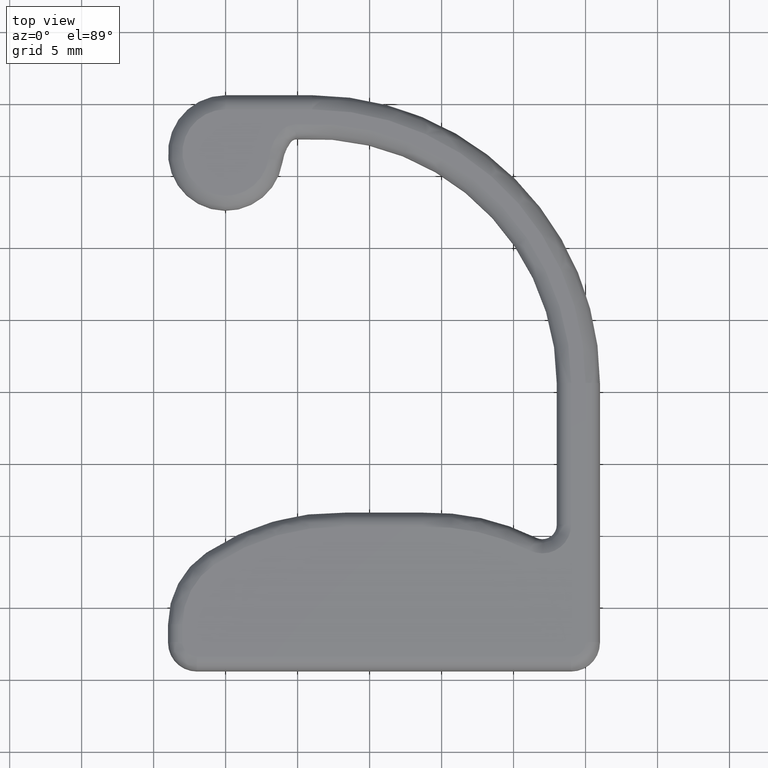
[diagram: clean part render]
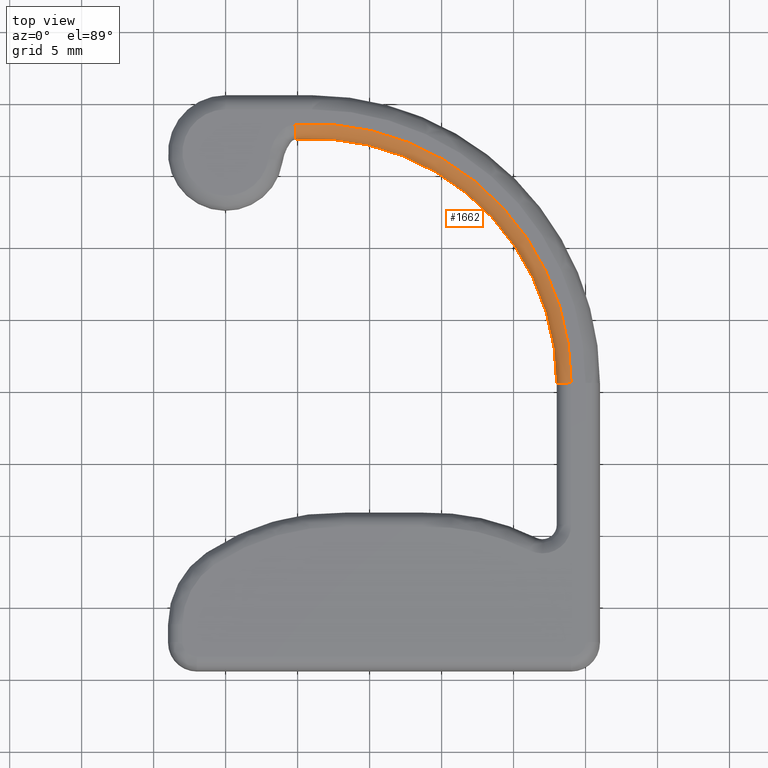
[diagram: same view with one face highlighted and labeled with its STEP entity id]
A machine part, top view. The second image highlights one B-rep face of the part: STEP entity #1662.
In plain terms, the highlighted face is a freeform B-spline surface patch.
Its self-contained STEP definition (entity closure, byte-faithful):
#515=CARTESIAN_POINT('',(4.820531992696061,33.459261606171367,3.0));
#516=VERTEX_POINT('',#515);
#524=CARTESIAN_POINT('',(23.999999999999659,15.497946085872059,3.0));
#525=VERTEX_POINT('',#524);
#526=CARTESIAN_POINT('',(5.999999999999659,15.497946085872059,3.0));
#527=DIRECTION('',(0.0,0.0,-1.0));
#528=DIRECTION('',(1.0,0.0,0.0));
#529=AXIS2_PLACEMENT_3D('',#526,#527,#528);
#530=CIRCLE('',#529,18.000000000000004);
#531=EDGE_CURVE('',#516,#525,#530,.T.);
#624=CARTESIAN_POINT('',(22.999999999999659,15.497946085872059,2.0));
#625=VERTEX_POINT('',#624);
#648=CARTESIAN_POINT('',(4.886057993101844,32.461410743932561,2.0));
#649=VERTEX_POINT('',#648);
#650=CARTESIAN_POINT('',(5.999999999999659,15.497946085872059,2.0));
#651=DIRECTION('',(0.0,0.0,-1.0));
#652=DIRECTION('',(1.0,0.0,0.0));
#653=AXIS2_PLACEMENT_3D('',#650,#651,#652);
#654=CIRCLE('',#653,17.000000000000004);
#655=EDGE_CURVE('',#649,#625,#654,.T.);
#1560=CARTESIAN_POINT('',(4.820531992696092,33.459261606171481,2.0));
#1561=DIRECTION('',(-0.997850862238855,-0.065526000405750,0.0));
#1562=DIRECTION('',(0.065526000405750,-0.997850862238855,0.0));
#1563=AXIS2_PLACEMENT_3D('',#1560,#1561,#1562);
#1564=CIRCLE('',#1563,1.000000000000065);
#1565=EDGE_CURVE('',#649,#516,#1564,.T.);
#1572=CARTESIAN_POINT('',(4.886057993101853,32.461410743932589,2.0));
#1573=CARTESIAN_POINT('',(4.886057993101853,32.461410743932589,2.130060214677418));
#1574=CARTESIAN_POINT('',(4.882648100236977,32.513337681549579,2.393027817343273));
#1575=CARTESIAN_POINT('',(4.868065399427614,32.735407706978954,2.725412911472945));
#1576=CARTESIAN_POINT('',(4.846285533614809,33.067078459751599,2.947961223884220));
#1577=CARTESIAN_POINT('',(4.829054318375825,33.329480908812606,3.000000000000000));
#1578=CARTESIAN_POINT('',(4.820531992696100,33.459261606171438,3.0));
#1579=CARTESIAN_POINT('',(6.040646615612572,32.537229262921862,2.0));
#1580=CARTESIAN_POINT('',(6.040646615612572,32.537229262921862,2.130060214677418));
#1581=CARTESIAN_POINT('',(6.040771039149616,32.589388288946793,2.393027817343273));
#1582=CARTESIAN_POINT('',(6.041303147132549,32.812450860461496,2.725412911472944));
#1583=CARTESIAN_POINT('',(6.042097872377054,33.145604021797155,2.947961223884221));
#1584=CARTESIAN_POINT('',(6.042726621969067,33.409179283456758,3.000000000000000));
#1585=CARTESIAN_POINT('',(6.043037593001568,33.539540038042425,3.0));
#1586=CARTESIAN_POINT('',(8.372355429680351,32.451917638349769,2.000000000000000));
#1587=CARTESIAN_POINT('',(8.372355429680351,32.451917638349769,2.130060214677418));
#1588=CARTESIAN_POINT('',(8.379617457508125,32.503815516578754,2.393027817343274));
#1589=CARTESIAN_POINT('',(8.410674145585489,32.725761267030066,2.725412911472944));
#1590=CARTESIAN_POINT('',(8.457058591632755,33.057246409991393,2.947961223884222));
#1591=CARTESIAN_POINT('',(8.493755804574782,33.319502013216081,3.000000000000000));
#1592=CARTESIAN_POINT('',(8.511905749073335,33.449210082613149,3.000000000000001));
#1593=CARTESIAN_POINT('',(11.765465513230081,31.616714369616133,2.000000000000000));
#1594=CARTESIAN_POINT('',(11.765465513230081,31.616714369616133,2.130060214677419));
#1595=CARTESIAN_POINT('',(11.783114205526923,31.666055603379661,2.393027817343278));
#1596=CARTESIAN_POINT('',(11.858590359658383,31.877067643361755,2.725412911472950));
#1597=CARTESIAN_POINT('',(11.971317112441696,32.192222838258623,2.947961223884222));
#1598=CARTESIAN_POINT('',(12.060501267986810,32.441558947288186,3.0));
#1599=CARTESIAN_POINT('',(12.104610543420105,32.564877209836382,3.000000000000000));
#1600=CARTESIAN_POINT('',(14.919678211591725,30.109569089935114,2.000000000000000));
#1601=CARTESIAN_POINT('',(14.919678211591725,30.109569089935114,2.130060214677418));
#1602=CARTESIAN_POINT('',(14.946982278502185,30.154296794534922,2.393027817343273));
#1603=CARTESIAN_POINT('',(15.063750474575201,30.345578679308083,2.725412911472947));
#1604=CARTESIAN_POINT('',(15.238148597043836,30.631266072695901,2.947961223884220));
#1605=CARTESIAN_POINT('',(15.376124267388132,30.857288629897994,3.0));
#1606=CARTESIAN_POINT('',(15.444365165214789,30.969076325468226,3.0));
#1607=CARTESIAN_POINT('',(17.701600803315586,27.993159924067289,2.0));
#1608=CARTESIAN_POINT('',(17.701600803315586,27.993159924067289,2.130060214677419));
#1609=CARTESIAN_POINT('',(17.737420625927353,28.031409079093450,2.393027817343274));
#1610=CARTESIAN_POINT('',(17.890607185414893,28.194984888088026,2.725412911472947));
#1611=CARTESIAN_POINT('',(18.119397637443022,28.439292113251540,2.947961223884221));
#1612=CARTESIAN_POINT('',(18.300405985125426,28.632576609006072,3.0));
#1613=CARTESIAN_POINT('',(18.389930262334175,28.728172502784652,3.0));
#1614=CARTESIAN_POINT('',(19.995749775201087,25.355895895095284,2.000000000000000));
#1615=CARTESIAN_POINT('',(19.995749775201087,25.355895895095284,2.130060214677419));
#1616=CARTESIAN_POINT('',(20.038592227502509,25.386072109394277,2.393027817343275));
#1617=CARTESIAN_POINT('',(20.221811668290844,25.515123291387070,2.725412911472949));
#1618=CARTESIAN_POINT('',(20.495457468669994,25.707866560520262,2.947961223884221));
#1619=CARTESIAN_POINT('',(20.711953278428577,25.860356056316238,3.000000000000001));
#1620=CARTESIAN_POINT('',(20.819029173742347,25.935775295637818,3.000000000000000));
#1621=CARTESIAN_POINT('',(21.706338934602698,22.307219236558275,2.0));
#1622=CARTESIAN_POINT('',(21.706338934602698,22.307219236558275,2.130060214677418));
#1623=CARTESIAN_POINT('',(21.754417679038962,22.328063133087667,2.393027817343273));
#1624=CARTESIAN_POINT('',(21.960030574571611,22.417203853583707,2.725412911472942));
#1625=CARTESIAN_POINT('',(22.267121924289885,22.550339200474614,2.947961223884221));
#1626=CARTESIAN_POINT('',(22.510078294659884,22.655669684964785,2.999999999999999));
#1627=CARTESIAN_POINT('',(22.630241224873465,22.707764716010399,3.000000000000000));
#1628=CARTESIAN_POINT('',(22.762084169164694,18.976128943742751,2.000000000000000));
#1629=CARTESIAN_POINT('',(22.762084169164694,18.976128943742751,2.130060214677419));
#1630=CARTESIAN_POINT('',(22.813394660065462,18.986776024862195,2.393027817343275));
#1631=CARTESIAN_POINT('',(23.032828397968011,19.032309185172593,2.725412911472948));
#1632=CARTESIAN_POINT('',(23.360561746460803,19.100314840267512,2.947961223884222));
#1633=CARTESIAN_POINT('',(23.619849104675424,19.154117746606794,3.000000000000001));
#1634=CARTESIAN_POINT('',(23.748089120292050,19.180727935382201,3.000000000000000));
#1635=CARTESIAN_POINT('',(22.999999999999662,16.655021422681607,2.0));
#1636=CARTESIAN_POINT('',(22.999999999999662,16.655021422681607,2.130060214677419));
#1637=CARTESIAN_POINT('',(23.052038776115442,16.658563351175804,2.393027817343274));
#1638=CARTESIAN_POINT('',(23.274587088526712,16.673710713736956,2.725412911472947));
#1639=CARTESIAN_POINT('',(23.606972182656392,16.696333925192288,2.947961223884221));
#1640=CARTESIAN_POINT('',(23.869939785322238,16.714232356217263,3.0));
#1641=CARTESIAN_POINT('',(23.999999999999659,16.723084677788048,3.0));
#1642=CARTESIAN_POINT('',(22.999999999999662,15.497946085872060,2.0));
#1643=CARTESIAN_POINT('',(22.999999999999662,15.497946085872060,2.130060214677419));
#1644=CARTESIAN_POINT('',(23.052038776115445,15.497946085872062,2.393027817343274));
#1645=CARTESIAN_POINT('',(23.274587088526712,15.497946085872057,2.725412911472947));
#1646=CARTESIAN_POINT('',(23.606972182656392,15.497946085872062,2.947961223884222));
#1647=CARTESIAN_POINT('',(23.869939785322241,15.497946085872059,3.0));
#1648=CARTESIAN_POINT('',(23.999999999999662,15.497946085872059,3.0));
#1649=B_SPLINE_SURFACE_WITH_KNOTS('',3,3,((#1572,#1579,#1586,#1593,#1600,#1607,#1614,#1621,#1628,#1635,#1642),(#1573,#1580,#1587,#1594,#1601,#1608,#1615,#1622,#1629,#1636,#1643),(#1574,#1581,#1588,#1595,#1602,#1609,#1616,#1623,#1630,#1637,#1644),(#1575,#1582,#1589,#1596,#1603,#1610,#1617,#1624,#1631,#1638,#1645),(#1576,#1583,#1590,#1597,#1604,#1611,#1618,#1625,#1632,#1639,#1646),(#1577,#1584,#1591,#1598,#1605,#1612,#1619,#1626,#1633,#1640,#1647),(#1578,#1585,#1592,#1599,#1606,#1613,#1620,#1627,#1634,#1641,#1648)),.UNSPECIFIED.,.F.,.F.,.U.,(4,1,1,1,4),(4,1,1,1,1,1,1,1,4),(0.0,0.390180644032256,0.780361288064512,1.170541932096768,1.560722576129025),(0.0,3.552343672108259,7.104687344216522,10.657031016324789,14.209374688433050,17.761718360541305,21.314062032649570,24.866405704757835,28.418749376866096),.UNSPECIFIED.);
#1650=ORIENTED_EDGE('',*,*,#655,.T.);
#1651=CARTESIAN_POINT('',(23.999999999999659,15.497946085872059,2.0));
#1652=DIRECTION('',(0.0,1.0,0.0));
#1653=DIRECTION('',(-1.0,0.0,0.0));
#1654=AXIS2_PLACEMENT_3D('',#1651,#1652,#1653);
#1655=CIRCLE('',#1654,1.0);
#1656=EDGE_CURVE('',#625,#525,#1655,.T.);
#1657=ORIENTED_EDGE('',*,*,#1656,.T.);
#1658=ORIENTED_EDGE('',*,*,#531,.F.);
#1659=ORIENTED_EDGE('',*,*,#1565,.F.);
#1660=EDGE_LOOP('',(#1650,#1657,#1658,#1659));
#1661=FACE_OUTER_BOUND('',#1660,.T.);
#1662=ADVANCED_FACE('',(#1661),#1649,.F.);